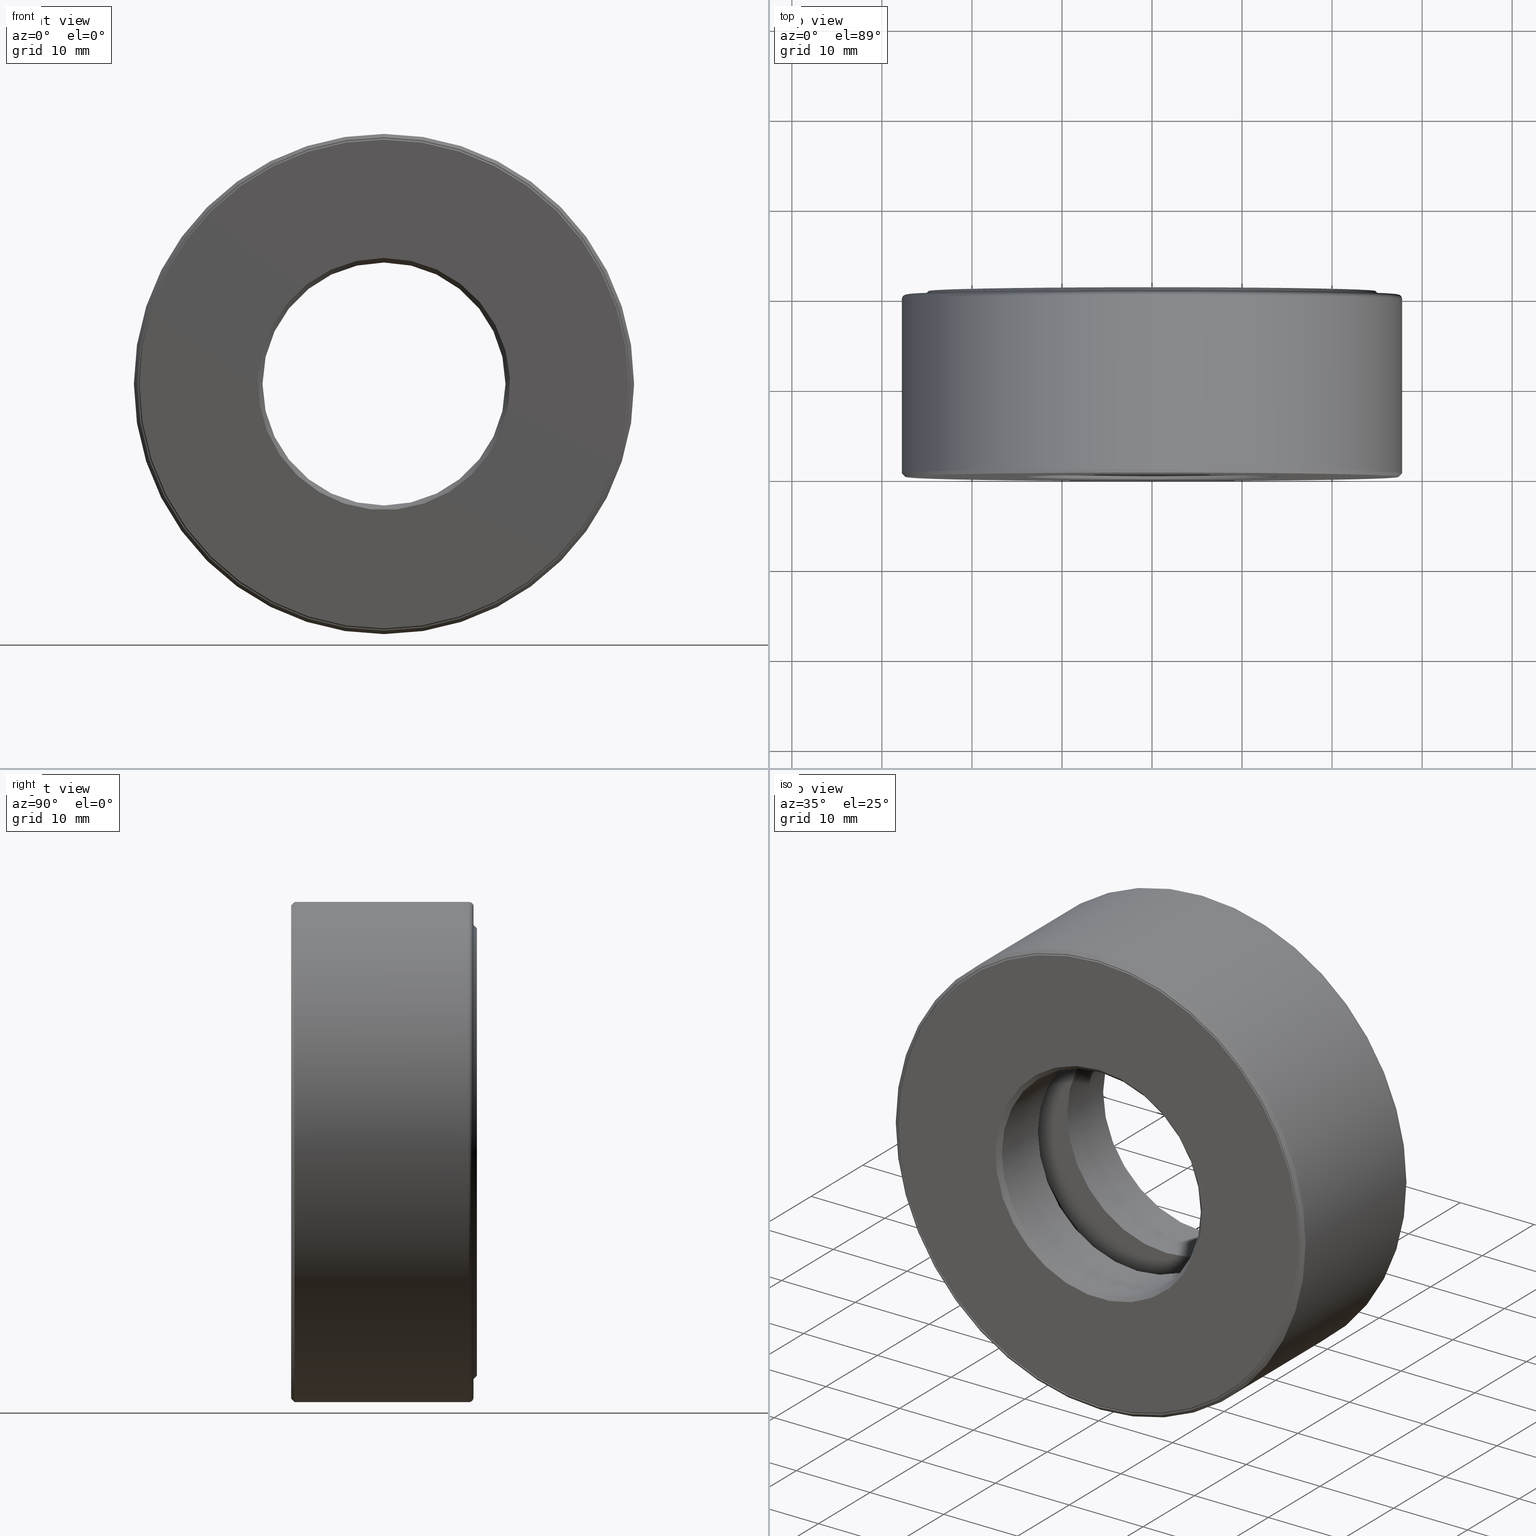
[diagram: canonical four-view strip — front | top / right | iso, engineering-drawing reading convention]
A machine part, canonical four-view strip (front | top / right | iso — engineering-drawing reading convention). The complete STEP part file that produces these views, byte-faithful:
ISO-10303-21;
HEADER;
FILE_DESCRIPTION (( 'STEP AP203' ),
    '1' );
FILE_NAME ('T-100-10.step',
    '2016-06-29T18:27:16',
    ( '' ),
    ( '' ),
    'SwSTEP 2.0',
    'SolidWorks 2016',
    '' );
FILE_SCHEMA (( 'CONFIG_CONTROL_DESIGN' ));
ENDSEC;

DATA;
#1 = APPLICATION_PROTOCOL_DEFINITION ( 'international standard', 'config_control_design', 1994, #260 ) ;
#2 = AXIS2_PLACEMENT_3D ( 'NONE', #442, #222, #544 ) ;
#3 = CARTESIAN_POINT ( 'NONE',  ( 0.0000000000000000000, 0.5187499999999999300, 0.7272500000000000600 ) ) ;
#4 = ORIENTED_EDGE ( 'NONE', *, *, #63, .F. ) ;
#5 = EDGE_LOOP ( 'NONE', ( #522 ) ) ;
#6 = CIRCLE ( 'NONE', #44, 1.073750000000000000 ) ;
#7 = ADVANCED_FACE ( 'NONE', ( #150, #557 ), #606, .F. ) ;
#8 = VERTEX_POINT ( 'NONE', #521 ) ;
#9 = CC_DESIGN_PERSON_AND_ORGANIZATION_ASSIGNMENT ( #19, #45, ( #22 ) ) ;
#10 = APPLICATION_PROTOCOL_DEFINITION ( 'international standard', 'config_control_design', 1994, #391 ) ;
#11 = ORIENTED_EDGE ( 'NONE', *, *, #580, .F. ) ;
#12 = CARTESIAN_POINT ( 'NONE',  ( 0.0000000000000000000, -6.616194359655631800E-017, 0.0000000000000000000 ) ) ;
#13 = VERTEX_POINT ( 'NONE', #256 ) ;
#14 = EDGE_LOOP ( 'NONE', ( #24 ) ) ;
#15 = EDGE_CURVE ( 'NONE', #592, #592, #392, .T. ) ;
#16 = FACE_OUTER_BOUND ( 'NONE', #165, .T. ) ;
#17 = EDGE_LOOP ( 'NONE', ( #138 ) ) ;
#18 = FACE_BOUND ( 'NONE', #67, .T. ) ;
#19 = PERSON_AND_ORGANIZATION ( #404, #148 ) ;
#20 = EDGE_CURVE ( 'NONE', #501, #501, #125, .T. ) ;
#21 = DIRECTION ( 'NONE',  ( 0.0000000000000000000, 0.0000000000000000000, 1.000000000000000000 ) ) ;
#22 = PRODUCT ( 'T-100-10', 'T-100-10', '', ( #353 ) ) ;
#23 = APPROVAL_ROLE ( '' ) ;
#24 = ORIENTED_EDGE ( 'NONE', *, *, #555, .T. ) ;
#25 = CARTESIAN_POINT ( 'NONE',  ( 0.0000000000000000000, 0.4062500000000000600, 0.0000000000000000000 ) ) ;
#26 = DIRECTION ( 'NONE',  ( 0.0000000000000000000, 0.0000000000000000000, 1.000000000000000000 ) ) ;
#27 = DATE_TIME_ROLE ( 'classification_date' ) ;
#28 = DIRECTION ( 'NONE',  ( -0.0000000000000000000, 1.000000000000000000, -0.0000000000000000000 ) ) ;
#29 = FACE_OUTER_BOUND ( 'NONE', #168, .T. ) ;
#30 = EDGE_CURVE ( 'NONE', #115, #115, #375, .T. ) ;
#31 = FACE_BOUND ( 'NONE', #538, .T. ) ;
#32 = AXIS2_PLACEMENT_3D ( 'NONE', #117, #532, #274 ) ;
#33 = FACE_BOUND ( 'NONE', #75, .T. ) ;
#34 = DIRECTION ( 'NONE',  ( 0.0000000000000000000, 0.0000000000000000000, 1.000000000000000000 ) ) ;
#35 = ORIENTED_EDGE ( 'NONE', *, *, #15, .F. ) ;
#36 = DESIGN_CONTEXT ( 'detailed design', #391, 'design' ) ;
#37 = ORIENTED_EDGE ( 'NONE', *, *, #272, .F. ) ;
#38 = ADVANCED_FACE ( 'NONE', ( #405, #16 ), #219, .T. ) ;
#39 = DIRECTION ( 'NONE',  ( -0.0000000000000000000, 1.000000000000000000, 0.0000000000000000000 ) ) ;
#40 = DIRECTION ( 'NONE',  ( 0.0000000000000000000, 0.0000000000000000000, 1.000000000000000000 ) ) ;
#41 = VERTEX_POINT ( 'NONE', #258 ) ;
#42 = EDGE_LOOP ( 'NONE', ( #104 ) ) ;
#43 = ORIENTED_EDGE ( 'NONE', *, *, #248, .T. ) ;
#44 = AXIS2_PLACEMENT_3D ( 'NONE', #155, #486, #216 ) ;
#45 = PERSON_AND_ORGANIZATION_ROLE ( 'design_owner' ) ;
#46 = CALENDAR_DATE ( 2016, 29, 6 ) ;
#47 = SPHERICAL_SURFACE ( 'NONE', #321, 0.1874999999999999700 ) ;
#48 = APPROVAL_ROLE ( '' ) ;
#49 = FACE_OUTER_BOUND ( 'NONE', #311, .T. ) ;
#50 = CC_DESIGN_PERSON_AND_ORGANIZATION_ASSIGNMENT ( #436, #350, ( #59 ) ) ;
#51 = CIRCLE ( 'NONE', #475, 1.013750000000000200 ) ;
#52 = CARTESIAN_POINT ( 'NONE',  ( 0.0000000000000000000, 0.7774999999999999700, 0.0000000000000000000 ) ) ;
#53 = CARTESIAN_POINT ( 'NONE',  ( 0.0000000000000000000, 0.01999999999999992400, 0.5312500000000000000 ) ) ;
#54 = ORIENTED_EDGE ( 'NONE', *, *, #94, .T. ) ;
#55 = PERSON_AND_ORGANIZATION ( #404, #148 ) ;
#56 = AXIS2_PLACEMENT_3D ( 'NONE', #134, #137, #183 ) ;
#57 = DIRECTION ( 'NONE',  ( -0.0000000000000000000, 1.000000000000000000, -0.0000000000000000000 ) ) ;
#58 = DIRECTION ( 'NONE',  ( 0.0000000000000000000, 0.0000000000000000000, 1.000000000000000000 ) ) ;
#59 = PRODUCT_DEFINITION ( 'UNKNOWN', '', #95, #36 ) ;
#60 = EDGE_LOOP ( 'NONE', ( #254 ) ) ;
#61 = EDGE_LOOP ( 'NONE', ( #111 ) ) ;
#62 = FACE_OUTER_BOUND ( 'NONE', #14, .T. ) ;
#63 = EDGE_CURVE ( 'NONE', #261, #261, #105, .T. ) ;
#64 = CIRCLE ( 'NONE', #567, 0.5512500000000000200 ) ;
#65 = APPROVAL_DATE_TIME ( #72, #531 ) ;
#66 = AXIS2_PLACEMENT_3D ( 'NONE', #124, #500, #233 ) ;
#67 = EDGE_LOOP ( 'NONE', ( #365 ) ) ;
#68 = PERSON_AND_ORGANIZATION ( #404, #148 ) ;
#69 = CARTESIAN_POINT ( 'NONE',  ( -8.159528204279590800E-033, -1.440622965408888800E-017, 0.0000000000000000000 ) ) ;
#70 = EDGE_CURVE ( 'NONE', #13, #13, #434, .T. ) ;
#71 = DIRECTION ( 'NONE',  ( 0.0000000000000000000, 0.0000000000000000000, 1.000000000000000000 ) ) ;
#72 = DATE_AND_TIME ( #357, #583 ) ;
#73 = EDGE_LOOP ( 'NONE', ( #334 ) ) ;
#74 = DIRECTION ( 'NONE',  ( 0.0000000000000000000, 0.0000000000000000000, 1.000000000000000000 ) ) ;
#75 = EDGE_LOOP ( 'NONE', ( #588 ) ) ;
#76 = EDGE_LOOP ( 'NONE', ( #281 ) ) ;
#77 = DIRECTION ( 'NONE',  ( -0.0000000000000000000, 1.000000000000000000, -0.0000000000000000000 ) ) ;
#78 = ORIENTED_EDGE ( 'NONE', *, *, #580, .T. ) ;
#79 = DIRECTION ( 'NONE',  ( 0.0000000000000000000, -1.000000000000000000, 0.0000000000000000000 ) ) ;
#80 = CIRCLE ( 'NONE', #491, 1.073750000000000000 ) ;
#81 = EDGE_CURVE ( 'NONE', #192, #192, #237, .T. ) ;
#82 = CIRCLE ( 'NONE', #188, 1.073749999999999800 ) ;
#83 = FACE_OUTER_BOUND ( 'NONE', #560, .T. ) ;
#84 = CARTESIAN_POINT ( 'NONE',  ( 0.0000000000000000000, 0.7774999999999999700, 0.0000000000000000000 ) ) ;
#85 = CLOSED_SHELL ( 'NONE', ( #476 ) ) ;
#86 = APPROVAL ( #141, 'UNSPECIFIED' ) ;
#87 = CIRCLE ( 'NONE', #502, 1.073750000000000000 ) ;
#88 = AXIS2_PLACEMENT_3D ( 'NONE', #144, #410, #166 ) ;
#89 = DIRECTION ( 'NONE',  ( -0.0000000000000000000, 1.000000000000000000, -0.0000000000000000000 ) ) ;
#90 = VERTEX_POINT ( 'NONE', #298 ) ;
#91 = CARTESIAN_POINT ( 'NONE',  ( 0.0000000000000000000, 0.004999999999999769400, 0.0000000000000000000 ) ) ;
#92 = EDGE_LOOP ( 'NONE', ( #277 ) ) ;
#93 = MANIFOLD_SOLID_BREP ( 'Revolve3', #116 ) ;
#94 = EDGE_CURVE ( 'NONE', #496, #496, #495, .T. ) ;
#95 = PRODUCT_DEFINITION_FORMATION_WITH_SPECIFIED_SOURCE ( 'ANY', '', #22, .NOT_KNOWN. ) ;
#96 = LOCAL_TIME ( 14, 27, 16.00000000000000000, #587 ) ;
#97 = CARTESIAN_POINT ( 'NONE',  ( 0.0000000000000000000, 0.7924999999999997600, 0.0000000000000000000 ) ) ;
#98 =( NAMED_UNIT ( * ) SI_UNIT ( $, .STERADIAN. ) SOLID_ANGLE_UNIT ( ) );
#99 = ADVANCED_FACE ( 'NONE', ( #527, #394 ), #181, .T. ) ;
#100 = PERSON_AND_ORGANIZATION_ROLE ( 'design_supplier' ) ;
#101 = EDGE_CURVE ( 'NONE', #157, #157, #146, .T. ) ;
#102 = AXIS2_PLACEMENT_3D ( 'NONE', #333, #428, #514 ) ;
#103 = CARTESIAN_POINT ( 'NONE',  ( 0.0000000000000000000, 0.7774999999999999700, 1.073750000000000000 ) ) ;
#104 = ORIENTED_EDGE ( 'NONE', *, *, #101, .T. ) ;
#105 = CIRCLE ( 'NONE', #534, 1.093750000000000000 ) ;
#106 = CARTESIAN_POINT ( 'NONE',  ( 0.0000000000000000000, 0.2937500000000001200, 0.7272500000000000600 ) ) ;
#107 = CARTESIAN_POINT ( 'NONE',  ( 0.0000000000000000000, -6.398780039534634000E-017, 0.0000000000000000000 ) ) ;
#108 =( GEOMETRIC_REPRESENTATION_CONTEXT ( 3 ) GLOBAL_UNCERTAINTY_ASSIGNED_CONTEXT ( ( #424 ) ) GLOBAL_UNIT_ASSIGNED_CONTEXT ( ( #346, #523, #98 ) ) REPRESENTATION_CONTEXT ( 'NONE', 'WORKASPACE' ) );
#109 = CARTESIAN_POINT ( 'NONE',  ( 0.0000000000000000000, 0.7974999999999999900, 1.013750000000000200 ) ) ;
#110 = DIRECTION ( 'NONE',  ( -0.0000000000000000000, 1.000000000000000000, 0.0000000000000000000 ) ) ;
#111 = ORIENTED_EDGE ( 'NONE', *, *, #581, .T. ) ;
#112 = FACE_OUTER_BOUND ( 'NONE', #429, .T. ) ;
#113 = PLANE ( 'NONE',  #469 ) ;
#114 = ORIENTED_EDGE ( 'NONE', *, *, #384, .T. ) ;
#115 = VERTEX_POINT ( 'NONE', #204 ) ;
#116 = CLOSED_SHELL ( 'NONE', ( #249 ) ) ;
#117 = CARTESIAN_POINT ( 'NONE',  ( -0.8772500000000000900, 0.4062500000000000600, 0.0000000000000000000 ) ) ;
#118 = PRODUCT_DEFINITION_SHAPE ( 'NONE', 'NONE',  #59 ) ;
#119 = AXIS2_PLACEMENT_3D ( 'NONE', #232, #77, #551 ) ;
#120 = DIRECTION ( 'NONE',  ( 0.0000000000000000000, 0.0000000000000000000, 1.000000000000000000 ) ) ;
#121 = DIRECTION ( 'NONE',  ( 0.0000000000000000000, 0.0000000000000000000, 1.000000000000000000 ) ) ;
#122 = VERTEX_POINT ( 'NONE', #470 ) ;
#123 = AXIS2_PLACEMENT_3D ( 'NONE', #597, #518, #292 ) ;
#124 = CARTESIAN_POINT ( 'NONE',  ( 0.0000000000000000000, -6.296055922898108400E-017, 0.0000000000000000000 ) ) ;
#125 = CIRCLE ( 'NONE', #119, 0.5312500000000000000 ) ;
#126 = ORIENTED_EDGE ( 'NONE', *, *, #304, .T. ) ;
#127 = FACE_BOUND ( 'NONE', #342, .T. ) ;
#128 = AXIS2_PLACEMENT_3D ( 'NONE', #594, #456, #374 ) ;
#129 = COORDINATED_UNIVERSAL_TIME_OFFSET ( 5, 0, .BEHIND. ) ;
#130 = DIRECTION ( 'NONE',  ( -0.0000000000000000000, 1.000000000000000000, 0.0000000000000000000 ) ) ;
#131 = LOCAL_TIME ( 14, 27, 16.00000000000000000, #579 ) ;
#132 = CARTESIAN_POINT ( 'NONE',  ( 0.0000000000000000000, 0.7974999999999999900, 0.0000000000000000000 ) ) ;
#133 = CYLINDRICAL_SURFACE ( 'NONE', #396, 0.5312500000000000000 ) ;
#134 = CARTESIAN_POINT ( 'NONE',  ( 0.0000000000000000000, 0.0000000000000000000, 0.0000000000000000000 ) ) ;
#135 = PLANE ( 'NONE',  #378 ) ;
#136 = ADVANCED_FACE ( 'NONE', ( #347, #18 ), #422, .F. ) ;
#137 = DIRECTION ( 'NONE',  ( -0.0000000000000000000, 1.000000000000000000, -0.0000000000000000000 ) ) ;
#138 = ORIENTED_EDGE ( 'NONE', *, *, #30, .T. ) ;
#139 = EDGE_LOOP ( 'NONE', ( #171 ) ) ;
#140 = AXIS2_PLACEMENT_3D ( 'NONE', #173, #79, #554 ) ;
#141 = APPROVAL_STATUS ( 'not_yet_approved' ) ;
#142 = ADVANCED_FACE ( 'NONE', ( #418, #433 ), #570, .T. ) ;
#143 = EDGE_LOOP ( 'NONE', ( #537 ) ) ;
#144 = CARTESIAN_POINT ( 'NONE',  ( -9.188706013500418100E-015, 0.4062500000000000600, -0.8772500000000000900 ) ) ;
#145 = FACE_OUTER_BOUND ( 'NONE', #60, .T. ) ;
#146 = CIRCLE ( 'NONE', #348, 1.013750000000000200 ) ;
#147 = CARTESIAN_POINT ( 'NONE',  ( 0.0000000000000000000, 0.0000000000000000000, 0.0000000000000000000 ) ) ;
#148 = ORGANIZATION ( 'UNSPECIFIED', 'UNSPECIFIED', '' ) ;
#149 = CARTESIAN_POINT ( 'NONE',  ( 0.0000000000000000000, 0.01500000000000004500, 1.093750000000000000 ) ) ;
#150 = FACE_OUTER_BOUND ( 'NONE', #92, .T. ) ;
#151 = ADVANCED_FACE ( 'NONE', ( #464, #286 ), #300, .F. ) ;
#152 = AXIS2_PLACEMENT_3D ( 'NONE', #412, #416, #179 ) ;
#153 = PERSON_AND_ORGANIZATION_ROLE ( 'classification_officer' ) ;
#154 = EDGE_LOOP ( 'NONE', ( #492 ) ) ;
#155 = CARTESIAN_POINT ( 'NONE',  ( 0.0000000000000000000, 0.7974999999999999900, 0.0000000000000000000 ) ) ;
#156 = CC_DESIGN_DATE_AND_TIME_ASSIGNMENT ( #210, #27, ( #352 ) ) ;
#157 = VERTEX_POINT ( 'NONE', #109 ) ;
#158 = ORIENTED_EDGE ( 'NONE', *, *, #390, .T. ) ;
#159 = CC_DESIGN_APPROVAL ( #531, ( #59 ) ) ;
#160 = CIRCLE ( 'NONE', #284, 1.027250000000000000 ) ;
#161 = CIRCLE ( 'NONE', #178, 0.9787499999999997900 ) ;
#162 = CIRCLE ( 'NONE', #371, 0.7272500000000000600 ) ;
#163 = AXIS2_PLACEMENT_3D ( 'NONE', #273, #360, #458 ) ;
#164 = DIRECTION ( 'NONE',  ( 0.0000000000000000000, -0.0000000000000000000, -1.000000000000000000 ) ) ;
#165 = EDGE_LOOP ( 'NONE', ( #565 ) ) ;
#166 = DIRECTION ( 'NONE',  ( 1.047444401652940000E-014, 0.0000000000000000000, 1.000000000000000000 ) ) ;
#167 = AXIS2_PLACEMENT_3D ( 'NONE', #529, #306, #397 ) ;
#168 = EDGE_LOOP ( 'NONE', ( #403 ) ) ;
#169 = FACE_OUTER_BOUND ( 'NONE', #244, .T. ) ;
#170 = VERTEX_POINT ( 'NONE', #440 ) ;
#171 = ORIENTED_EDGE ( 'NONE', *, *, #555, .F. ) ;
#172 = ORIENTED_EDGE ( 'NONE', *, *, #283, .F. ) ;
#173 = CARTESIAN_POINT ( 'NONE',  ( 0.0000000000000000000, 0.7974999999999999900, 0.0000000000000000000 ) ) ;
#174 = ORIENTED_EDGE ( 'NONE', *, *, #358, .T. ) ;
#175 = DIRECTION ( 'NONE',  ( -0.0000000000000000000, 1.000000000000000000, -0.0000000000000000000 ) ) ;
#176 = PERSON_AND_ORGANIZATION ( #404, #148 ) ;
#177 = CARTESIAN_POINT ( 'NONE',  ( 0.0000000000000000000, 0.2937500000000001200, 0.0000000000000000000 ) ) ;
#178 = AXIS2_PLACEMENT_3D ( 'NONE', #548, #231, #121 ) ;
#179 = DIRECTION ( 'NONE',  ( 0.0000000000000000000, 0.0000000000000000000, 1.000000000000000000 ) ) ;
#180 = FACE_OUTER_BOUND ( 'NONE', #209, .T. ) ;
#181 = CYLINDRICAL_SURFACE ( 'NONE', #445, 1.066750000000000100 ) ;
#182 = FACE_BOUND ( 'NONE', #493, .T. ) ;
#183 = DIRECTION ( 'NONE',  ( 0.0000000000000000000, 0.0000000000000000000, 1.000000000000000000 ) ) ;
#184 = CARTESIAN_POINT ( 'NONE',  ( 0.0000000000000000000, 0.7245000000000001400, 0.0000000000000000000 ) ) ;
#185 = ORIENTED_EDGE ( 'NONE', *, *, #81, .F. ) ;
#186 = DIRECTION ( 'NONE',  ( 0.0000000000000000000, 0.0000000000000000000, 1.000000000000000000 ) ) ;
#187 = DIRECTION ( 'NONE',  ( -0.0000000000000000000, 1.000000000000000000, -0.0000000000000000000 ) ) ;
#188 = AXIS2_PLACEMENT_3D ( 'NONE', #107, #344, #471 ) ;
#189 = CARTESIAN_POINT ( 'NONE',  ( 0.0000000000000000000, 0.7924999999999997600, 0.0000000000000000000 ) ) ;
#190 = CARTESIAN_POINT ( 'NONE',  ( 5.117859363130596100E-017, 0.2937500000000001200, 0.0000000000000000000 ) ) ;
#191 = DIRECTION ( 'NONE',  ( 0.0000000000000000000, 0.0000000000000000000, 1.000000000000000000 ) ) ;
#192 = VERTEX_POINT ( 'NONE', #53 ) ;
#193 = CYLINDRICAL_SURFACE ( 'NONE', #295, 1.013750000000000200 ) ;
#194 = ORIENTED_EDGE ( 'NONE', *, *, #384, .F. ) ;
#195 = DIRECTION ( 'NONE',  ( 0.0000000000000000000, -1.000000000000000000, 0.0000000000000000000 ) ) ;
#196 = CLOSED_SHELL ( 'NONE', ( #211, #481, #345, #467, #151, #571, #398, #99 ) ) ;
#197 = DIRECTION ( 'NONE',  ( -0.0000000000000000000, 1.000000000000000000, -0.0000000000000000000 ) ) ;
#198 = CARTESIAN_POINT ( 'NONE',  ( 0.0000000000000000000, 0.2937500000000000700, 1.027250000000000000 ) ) ;
#199 = CC_DESIGN_PERSON_AND_ORGANIZATION_ASSIGNMENT ( #68, #153, ( #352 ) ) ;
#200 = FACE_BOUND ( 'NONE', #230, .T. ) ;
#201 =( LENGTH_UNIT ( ) NAMED_UNIT ( * ) SI_UNIT ( $, .METRE. ) );
#202 = FACE_OUTER_BOUND ( 'NONE', #143, .T. ) ;
#203 = CIRCLE ( 'NONE', #236, 0.5312500000000000000 ) ;
#204 = CARTESIAN_POINT ( 'NONE',  ( 0.0000000000000000000, 0.2937500000000000700, 1.073749999999999800 ) ) ;
#205 = ADVANCED_FACE ( 'NONE', ( ), #47, .T. ) ;
#206 = ORIENTED_EDGE ( 'NONE', *, *, #304, .F. ) ;
#207 = AXIS2_PLACEMENT_3D ( 'NONE', #338, #39, #40 ) ;
#208 = CARTESIAN_POINT ( 'NONE',  ( 0.0000000000000000000, 0.7974999999999999900, 1.073750000000000000 ) ) ;
#209 = EDGE_LOOP ( 'NONE', ( #54 ) ) ;
#210 = DATE_AND_TIME ( #336, #131 ) ;
#211 = ADVANCED_FACE ( 'NONE', ( #315, #539 ), #135, .T. ) ;
#212 = CARTESIAN_POINT ( 'NONE',  ( 0.0000000000000000000, -6.398780039534634000E-017, 1.073749999999999800 ) ) ;
#213 = CARTESIAN_POINT ( 'NONE',  ( 0.0000000000000000000, 0.8125000000000001100, 0.0000000000000000000 ) ) ;
#214 = ORIENTED_EDGE ( 'NONE', *, *, #377, .T. ) ;
#215 = MANIFOLD_SOLID_BREP ( 'BALLS[3]', #364 ) ;
#216 = DIRECTION ( 'NONE',  ( 0.0000000000000000000, 0.0000000000000000000, 1.000000000000000000 ) ) ;
#217 = EDGE_LOOP ( 'NONE', ( #363 ) ) ;
#218 = ORIENTED_EDGE ( 'NONE', *, *, #70, .T. ) ;
#219 = CYLINDRICAL_SURFACE ( 'NONE', #152, 1.093750000000000000 ) ;
#220 = AXIS2_PLACEMENT_3D ( 'NONE', #189, #197, #511 ) ;
#221 = PERSON_AND_ORGANIZATION ( #404, #148 ) ;
#222 = DIRECTION ( 'NONE',  ( -0.0000000000000000000, 1.000000000000000000, -0.0000000000000000000 ) ) ;
#223 = FACE_BOUND ( 'NONE', #498, .T. ) ;
#224 = EDGE_CURVE ( 'NONE', #90, #90, #80, .T. ) ;
#225 = ORIENTED_EDGE ( 'NONE', *, *, #489, .T. ) ;
#226 = CARTESIAN_POINT ( 'NONE',  ( 0.0000000000000000000, 0.5187500000000000400, 0.0000000000000000000 ) ) ;
#227 = DIRECTION ( 'NONE',  ( -0.0000000000000000000, 1.000000000000000000, -0.0000000000000000000 ) ) ;
#228 = AXIS2_PLACEMENT_3D ( 'NONE', #463, #572, #477 ) ;
#229 = CALENDAR_DATE ( 2016, 29, 6 ) ;
#230 = EDGE_LOOP ( 'NONE', ( #43 ) ) ;
#231 = DIRECTION ( 'NONE',  ( -0.0000000000000000000, 1.000000000000000000, -0.0000000000000000000 ) ) ;
#232 = CARTESIAN_POINT ( 'NONE',  ( 0.0000000000000000000, 0.2937500000000001200, 0.0000000000000000000 ) ) ;
#233 = DIRECTION ( 'NONE',  ( 0.0000000000000000000, 0.0000000000000000000, 1.000000000000000000 ) ) ;
#234 = DIRECTION ( 'NONE',  ( 0.0000000000000000000, -1.000000000000000000, 0.0000000000000000000 ) ) ;
#235 = DIRECTION ( 'NONE',  ( 0.0000000000000000000, -0.0000000000000000000, -1.000000000000000000 ) ) ;
#236 = AXIS2_PLACEMENT_3D ( 'NONE', #97, #187, #34 ) ;
#237 = CIRCLE ( 'NONE', #102, 0.5312500000000000000 ) ;
#238 = CARTESIAN_POINT ( 'NONE',  ( 0.0000000000000000000, 0.5187499999999999300, 0.0000000000000000000 ) ) ;
#239 = VERTEX_POINT ( 'NONE', #3 ) ;
#240 = EDGE_CURVE ( 'NONE', #268, #268, #82, .T. ) ;
#241 = CC_DESIGN_APPROVAL ( #86, ( #95 ) ) ;
#242 = DIRECTION ( 'NONE',  ( 0.0000000000000000000, 0.0000000000000000000, 1.000000000000000000 ) ) ;
#243 = DIRECTION ( 'NONE',  ( 0.0000000000000000000, -1.000000000000000000, 0.0000000000000000000 ) ) ;
#244 = EDGE_LOOP ( 'NONE', ( #194 ) ) ;
#245 = ADVANCED_FACE ( 'NONE', ( #223, #271 ), #479, .F. ) ;
#246 = DIRECTION ( 'NONE',  ( 0.0000000000000000000, 0.0000000000000000000, 1.000000000000000000 ) ) ;
#247 = APPROVAL_PERSON_ORGANIZATION ( #373, #462, #23 ) ;
#248 = EDGE_CURVE ( 'NONE', #294, #294, #257, .T. ) ;
#249 = ADVANCED_FACE ( 'NONE', ( ), #380, .T. ) ;
#250 = CARTESIAN_POINT ( 'NONE',  ( 0.0000000000000000000, 3.414809992080329000E-017, 0.5512500000000000200 ) ) ;
#251 = LENGTH_MEASURE_WITH_UNIT ( LENGTH_MEASURE( 0.02539999999999999900 ), #201 );
#252 = AXIS2_PLACEMENT_3D ( 'NONE', #415, #234, #414 ) ;
#253 = APPROVAL_STATUS ( 'not_yet_approved' ) ;
#254 = ORIENTED_EDGE ( 'NONE', *, *, #358, .F. ) ;
#255 = DIRECTION ( 'NONE',  ( 0.0000000000000000000, -1.000000000000000000, 0.0000000000000000000 ) ) ;
#256 = CARTESIAN_POINT ( 'NONE',  ( 0.0000000000000000000, -6.616194359655631800E-017, 1.078750000000000100 ) ) ;
#257 = CIRCLE ( 'NONE', #368, 0.5312500000000000000 ) ;
#258 = CARTESIAN_POINT ( 'NONE',  ( 0.0000000000000000000, 0.8125000000000001100, 0.9787499999999997900 ) ) ;
#259 = ADVANCED_FACE ( 'NONE', ( ), #313, .T. ) ;
#260 = APPLICATION_CONTEXT ( 'configuration controlled 3d designs of mechanical parts and assemblies' ) ;
#261 = VERTEX_POINT ( 'NONE', #149 ) ;
#262 = AXIS2_PLACEMENT_3D ( 'NONE', #372, #547, #26 ) ;
#263 = CARTESIAN_POINT ( 'NONE',  ( 0.0000000000000000000, 0.5187500000000000400, 0.0000000000000000000 ) ) ;
#264 = EDGE_LOOP ( 'NONE', ( #323 ) ) ;
#265 = CALENDAR_DATE ( 2016, 29, 6 ) ;
#266 = DIRECTION ( 'NONE',  ( 0.0000000000000000000, 0.0000000000000000000, 1.000000000000000000 ) ) ;
#267 = CC_DESIGN_PERSON_AND_ORGANIZATION_ASSIGNMENT ( #55, #100, ( #95 ) ) ;
#268 = VERTEX_POINT ( 'NONE', #212 ) ;
#269 = CLOSED_SHELL ( 'NONE', ( #525, #245, #7, #136, #605, #387, #142, #38, #290, #599, #349, #438, #305, #355, #563, #574 ) ) ;
#270 = MANIFOLD_SOLID_BREP ( 'BALLS[2]', #443 ) ;
#271 = FACE_OUTER_BOUND ( 'NONE', #17, .T. ) ;
#272 = EDGE_CURVE ( 'NONE', #427, #427, #64, .T. ) ;
#273 = CARTESIAN_POINT ( 'NONE',  ( 0.0000000000000000000, 0.01999999999999992400, 0.0000000000000000000 ) ) ;
#274 = DIRECTION ( 'NONE',  ( 1.000000000000000000, 0.0000000000000000000, 0.0000000000000000000 ) ) ;
#275 = ORIENTED_EDGE ( 'NONE', *, *, #390, .F. ) ;
#276 = APPROVAL_DATE_TIME ( #536, #462 ) ;
#277 = ORIENTED_EDGE ( 'NONE', *, *, #30, .F. ) ;
#278 = DIRECTION ( 'NONE',  ( -0.0000000000000000000, 1.000000000000000000, -0.0000000000000000000 ) ) ;
#279 = EDGE_LOOP ( 'NONE', ( #35 ) ) ;
#280 = CARTESIAN_POINT ( 'NONE',  ( 0.0000000000000000000, 0.0000000000000000000, 0.0000000000000000000 ) ) ;
#281 = ORIENTED_EDGE ( 'NONE', *, *, #459, .T. ) ;
#282 = DIRECTION ( 'NONE',  ( 0.0000000000000000000, 0.0000000000000000000, 1.000000000000000000 ) ) ;
#283 = EDGE_CURVE ( 'NONE', #122, #122, #569, .T. ) ;
#284 = AXIS2_PLACEMENT_3D ( 'NONE', #331, #461, #552 ) ;
#285 = ORIENTED_EDGE ( 'NONE', *, *, #15, .T. ) ;
#286 = FACE_BOUND ( 'NONE', #139, .T. ) ;
#287 = AXIS2_PLACEMENT_3D ( 'NONE', #515, #130, #242 ) ;
#288 = DIRECTION ( 'NONE',  ( 0.0000000000000000000, 0.0000000000000000000, 1.000000000000000000 ) ) ;
#289 = DIRECTION ( 'NONE',  ( 0.0000000000000000000, -0.0000000000000000000, -1.000000000000000000 ) ) ;
#290 = ADVANCED_FACE ( 'NONE', ( #541, #448 ), #453, .T. ) ;
#291 = DIRECTION ( 'NONE',  ( -0.0000000000000000000, 1.000000000000000000, -0.0000000000000000000 ) ) ;
#292 = DIRECTION ( 'NONE',  ( 0.0000000000000000000, 0.0000000000000000000, 1.000000000000000000 ) ) ;
#293 = CARTESIAN_POINT ( 'NONE',  ( 0.0000000000000000000, -6.616194359655631800E-017, 0.0000000000000000000 ) ) ;
#294 = VERTEX_POINT ( 'NONE', #308 ) ;
#295 = AXIS2_PLACEMENT_3D ( 'NONE', #147, #568, #478 ) ;
#296 = EDGE_LOOP ( 'NONE', ( #126 ) ) ;
#297 = ORIENTED_EDGE ( 'NONE', *, *, #283, .T. ) ;
#298 = CARTESIAN_POINT ( 'NONE',  ( 0.0000000000000000000, 0.004999999999999769400, 1.073750000000000000 ) ) ;
#299 = CARTESIAN_POINT ( 'NONE',  ( 0.0000000000000000000, 0.5187500000000000400, 1.066750000000000100 ) ) ;
#300 = CONICAL_SURFACE ( 'NONE', #220, 0.5312500000000000000, 0.7853981633974415100 ) ;
#301 = FACE_BOUND ( 'NONE', #488, .T. ) ;
#302 = CARTESIAN_POINT ( 'NONE',  ( 0.0000000000000000000, 0.7924999999999997600, 0.5312500000000000000 ) ) ;
#303 = CIRCLE ( 'NONE', #123, 1.093750000000000000 ) ;
#304 = EDGE_CURVE ( 'NONE', #591, #591, #6, .T. ) ;
#305 = ADVANCED_FACE ( 'NONE', ( #354, #127 ), #113, .F. ) ;
#306 = DIRECTION ( 'NONE',  ( 0.0000000000000000000, 0.0000000000000000000, 1.000000000000000000 ) ) ;
#307 = EDGE_LOOP ( 'NONE', ( #218 ) ) ;
#308 = CARTESIAN_POINT ( 'NONE',  ( 0.0000000000000000000, 0.5187500000000000400, 0.5312500000000000000 ) ) ;
#309 = LOCAL_TIME ( 14, 27, 16.00000000000000000, #457 ) ;
#310 = PLANE ( 'NONE',  #441 ) ;
#311 = EDGE_LOOP ( 'NONE', ( #11 ) ) ;
#312 = APPROVAL_DATE_TIME ( #566, #86 ) ;
#313 = SPHERICAL_SURFACE ( 'NONE', #88, 0.1874999999999999700 ) ;
#314 = AXIS2_PLACEMENT_3D ( 'NONE', #389, #562, #379 ) ;
#315 = FACE_BOUND ( 'NONE', #370, .T. ) ;
#316 = FACE_OUTER_BOUND ( 'NONE', #437, .T. ) ;
#317 = EDGE_LOOP ( 'NONE', ( #530 ) ) ;
#318 = DIRECTION ( 'NONE',  ( -0.0000000000000000000, 1.000000000000000000, -0.0000000000000000000 ) ) ;
#319 = EDGE_LOOP ( 'NONE', ( #466 ) ) ;
#320 = CIRCLE ( 'NONE', #482, 1.066750000000000100 ) ;
#321 = AXIS2_PLACEMENT_3D ( 'NONE', #383, #519, #425 ) ;
#322 = DIRECTION ( 'NONE',  ( 0.0000000000000000000, 0.0000000000000000000, 1.000000000000000000 ) ) ;
#323 = ORIENTED_EDGE ( 'NONE', *, *, #81, .T. ) ;
#324 = EDGE_LOOP ( 'NONE', ( #225 ) ) ;
#325 = AXIS2_PLACEMENT_3D ( 'NONE', #343, #601, #559 ) ;
#326 = DIRECTION ( 'NONE',  ( 0.0000000000000000000, 0.0000000000000000000, 1.000000000000000000 ) ) ;
#327 = FACE_OUTER_BOUND ( 'NONE', #595, .T. ) ;
#328 = ADVANCED_BREP_SHAPE_REPRESENTATION ( 'T-100-10', ( #494, #490, #93, #431, #270, #215, #167 ), #108 ) ;
#329 = CC_DESIGN_APPROVAL ( #462, ( #352 ) ) ;
#330 = CIRCLE ( 'NONE', #590, 0.7272500000000000600 ) ;
#331 = CARTESIAN_POINT ( 'NONE',  ( 0.0000000000000000000, 0.2937500000000000700, 0.0000000000000000000 ) ) ;
#332 = FACE_OUTER_BOUND ( 'NONE', #319, .T. ) ;
#333 = CARTESIAN_POINT ( 'NONE',  ( 0.0000000000000000000, 0.01999999999999992400, 0.0000000000000000000 ) ) ;
#334 = ORIENTED_EDGE ( 'NONE', *, *, #101, .F. ) ;
#335 = AXIS2_PLACEMENT_3D ( 'NONE', #293, #468, #288 ) ;
#336 = CALENDAR_DATE ( 2016, 29, 6 ) ;
#337 = CARTESIAN_POINT ( 'NONE',  ( 0.0000000000000000000, 0.01500000000000004500, 0.0000000000000000000 ) ) ;
#338 = CARTESIAN_POINT ( 'NONE',  ( 0.0000000000000000000, 0.7774999999999999700, 0.0000000000000000000 ) ) ;
#339 = VERTEX_POINT ( 'NONE', #604 ) ;
#340 = ORIENTED_EDGE ( 'NONE', *, *, #70, .F. ) ;
#341 = PLANE ( 'NONE',  #228 ) ;
#342 = EDGE_LOOP ( 'NONE', ( #535 ) ) ;
#343 = CARTESIAN_POINT ( 'NONE',  ( 0.0000000000000000000, 0.2937500000000000700, 0.0000000000000000000 ) ) ;
#344 = DIRECTION ( 'NONE',  ( -0.0000000000000000000, 1.000000000000000000, -0.0000000000000000000 ) ) ;
#345 = ADVANCED_FACE ( 'NONE', ( #200, #49 ), #310, .T. ) ;
#346 =( CONVERSION_BASED_UNIT ( 'INCH', #251 ) LENGTH_UNIT ( ) NAMED_UNIT ( #472 ) );
#347 = FACE_OUTER_BOUND ( 'NONE', #578, .T. ) ;
#348 = AXIS2_PLACEMENT_3D ( 'NONE', #132, #89, #556 ) ;
#349 = ADVANCED_FACE ( 'NONE', ( #202, #29 ), #596, .F. ) ;
#350 = PERSON_AND_ORGANIZATION_ROLE ( 'creator' ) ;
#351 = CARTESIAN_POINT ( 'NONE',  ( 0.0000000000000000000, 0.2937500000000001200, 0.5312500000000000000 ) ) ;
#352 = SECURITY_CLASSIFICATION ( '', '', #533 ) ;
#353 = MECHANICAL_CONTEXT ( 'NONE', #260, 'mechanical' ) ;
#354 = FACE_OUTER_BOUND ( 'NONE', #279, .T. ) ;
#355 = ADVANCED_FACE ( 'NONE', ( #327, #480 ), #575, .F. ) ;
#356 = DATE_TIME_ROLE ( 'creation_date' ) ;
#357 = CALENDAR_DATE ( 2016, 29, 6 ) ;
#358 = EDGE_CURVE ( 'NONE', #170, #170, #582, .T. ) ;
#359 = ORIENTED_EDGE ( 'NONE', *, *, #20, .F. ) ;
#360 = DIRECTION ( 'NONE',  ( 0.0000000000000000000, -1.000000000000000000, 0.0000000000000000000 ) ) ;
#361 = CARTESIAN_POINT ( 'NONE',  ( -1.807584370807828400E-016, 0.5187500000000000400, 0.0000000000000000000 ) ) ;
#362 = AXIS2_PLACEMENT_3D ( 'NONE', #12, #484, #58 ) ;
#363 = ORIENTED_EDGE ( 'NONE', *, *, #489, .F. ) ;
#364 = CLOSED_SHELL ( 'NONE', ( #259 ) ) ;
#365 = ORIENTED_EDGE ( 'NONE', *, *, #593, .T. ) ;
#366 = SHAPE_DEFINITION_REPRESENTATION ( #118, #328 ) ;
#367 = TOROIDAL_SURFACE ( 'NONE', #452, 0.8772500000000000900, 0.1874999999999999700 ) ;
#368 = AXIS2_PLACEMENT_3D ( 'NONE', #263, #577, #266 ) ;
#369 = VERTEX_POINT ( 'NONE', #103 ) ;
#370 = EDGE_LOOP ( 'NONE', ( #174 ) ) ;
#371 = AXIS2_PLACEMENT_3D ( 'NONE', #238, #291, #561 ) ;
#372 = CARTESIAN_POINT ( 'NONE',  ( 0.0000000000000000000, 0.0000000000000000000, 0.0000000000000000000 ) ) ;
#373 = PERSON_AND_ORGANIZATION ( #404, #148 ) ;
#374 = DIRECTION ( 'NONE',  ( -3.491481338843134500E-015, 0.0000000000000000000, -1.000000000000000000 ) ) ;
#375 = CIRCLE ( 'NONE', #325, 1.073749999999999800 ) ;
#376 = CARTESIAN_POINT ( 'NONE',  ( 0.0000000000000000000, 0.5187499999999999300, 0.0000000000000000000 ) ) ;
#377 = EDGE_CURVE ( 'NONE', #369, #369, #87, .T. ) ;
#378 = AXIS2_PLACEMENT_3D ( 'NONE', #385, #243, #289 ) ;
#379 = DIRECTION ( 'NONE',  ( 0.0000000000000000000, 0.0000000000000000000, 1.000000000000000000 ) ) ;
#380 = SPHERICAL_SURFACE ( 'NONE', #32, 0.1874999999999999700 ) ;
#381 = AXIS2_PLACEMENT_3D ( 'NONE', #190, #195, #235 ) ;
#382 = DIRECTION ( 'NONE',  ( 0.0000000000000000000, 0.0000000000000000000, 1.000000000000000000 ) ) ;
#383 = CARTESIAN_POINT ( 'NONE',  ( 0.8772500000000000900, 0.4062500000000000600, -6.125804009000277700E-015 ) ) ;
#384 = EDGE_CURVE ( 'NONE', #603, #603, #330, .T. ) ;
#385 = CARTESIAN_POINT ( 'NONE',  ( 8.969279409578060600E-016, 0.5187500000000000400, 0.0000000000000000000 ) ) ;
#386 = EDGE_LOOP ( 'NONE', ( #214 ) ) ;
#387 = ADVANCED_FACE ( 'NONE', ( #406, #419 ), #546, .F. ) ;
#388 = PERSON_AND_ORGANIZATION ( #404, #148 ) ;
#389 = CARTESIAN_POINT ( 'NONE',  ( 0.0000000000000000000, 0.7774999999999999700, 0.0000000000000000000 ) ) ;
#390 = EDGE_CURVE ( 'NONE', #41, #41, #161, .T. ) ;
#391 = APPLICATION_CONTEXT ( 'configuration controlled 3d designs of mechanical parts and assemblies' ) ;
#392 = CIRCLE ( 'NONE', #411, 1.068750000000000100 ) ;
#393 = PERSON_AND_ORGANIZATION_ROLE ( 'creator' ) ;
#394 = FACE_OUTER_BOUND ( 'NONE', #520, .T. ) ;
#395 = DIRECTION ( 'NONE',  ( 0.0000000000000000000, 0.0000000000000000000, 1.000000000000000000 ) ) ;
#396 = AXIS2_PLACEMENT_3D ( 'NONE', #280, #227, #589 ) ;
#397 = DIRECTION ( 'NONE',  ( 1.000000000000000000, 0.0000000000000000000, 0.0000000000000000000 ) ) ;
#398 = ADVANCED_FACE ( 'NONE', ( #180, #31 ), #526, .T. ) ;
#399 = ORIENTED_EDGE ( 'NONE', *, *, #248, .F. ) ;
#400 = CARTESIAN_POINT ( 'NONE',  ( 0.0000000000000000000, -6.296055922898108400E-017, 1.068750000000000100 ) ) ;
#401 = DIRECTION ( 'NONE',  ( 0.0000000000000000000, 0.0000000000000000000, 1.000000000000000000 ) ) ;
#402 = VERTEX_POINT ( 'NONE', #302 ) ;
#403 = ORIENTED_EDGE ( 'NONE', *, *, #224, .T. ) ;
#404 = PERSON ( 'UNSPECIFIED', 'UNSPECIFIED', 'UNSPECIFIED', ('UNSPECIFIED'), ('UNSPECIFIED'), ('UNSPECIFIED') ) ;
#405 = FACE_OUTER_BOUND ( 'NONE', #5, .T. ) ;
#406 = FACE_BOUND ( 'NONE', #73, .T. ) ;
#407 = FACE_OUTER_BOUND ( 'NONE', #549, .T. ) ;
#408 = FACE_OUTER_BOUND ( 'NONE', #42, .T. ) ;
#409 = EDGE_LOOP ( 'NONE', ( #297 ) ) ;
#410 = DIRECTION ( 'NONE',  ( 1.000000000000000000, 0.0000000000000000000, -1.047444401652940000E-014 ) ) ;
#411 = AXIS2_PLACEMENT_3D ( 'NONE', #506, #175, #503 ) ;
#412 = CARTESIAN_POINT ( 'NONE',  ( 0.0000000000000000000, 0.0000000000000000000, 0.0000000000000000000 ) ) ;
#413 = ORIENTED_EDGE ( 'NONE', *, *, #377, .F. ) ;
#414 = DIRECTION ( 'NONE',  ( 0.0000000000000000000, 0.0000000000000000000, -1.000000000000000000 ) ) ;
#415 = CARTESIAN_POINT ( 'NONE',  ( 0.0000000000000000000, 0.8125000000000001100, 0.0000000000000000000 ) ) ;
#416 = DIRECTION ( 'NONE',  ( -0.0000000000000000000, 1.000000000000000000, -0.0000000000000000000 ) ) ;
#417 = DIRECTION ( 'NONE',  ( -0.0000000000000000000, 1.000000000000000000, -0.0000000000000000000 ) ) ;
#418 = FACE_OUTER_BOUND ( 'NONE', #509, .T. ) ;
#419 = FACE_OUTER_BOUND ( 'NONE', #296, .T. ) ;
#420 = FACE_OUTER_BOUND ( 'NONE', #543, .T. ) ;
#421 = DIRECTION ( 'NONE',  ( -0.0000000000000000000, 1.000000000000000000, -0.0000000000000000000 ) ) ;
#422 = PLANE ( 'NONE',  #207 ) ;
#423 = DIRECTION ( 'NONE',  ( -0.0000000000000000000, 1.000000000000000000, -0.0000000000000000000 ) ) ;
#424 = UNCERTAINTY_MEASURE_WITH_UNIT (LENGTH_MEASURE( 1.000000000000000100E-005 ), #346, 'distance_accuracy_value', 'NONE');
#425 = DIRECTION ( 'NONE',  ( -1.000000000000000000, 0.0000000000000000000, 6.982962677686269100E-015 ) ) ;
#426 = DIRECTION ( 'NONE',  ( -0.0000000000000000000, 1.000000000000000000, -0.0000000000000000000 ) ) ;
#427 = VERTEX_POINT ( 'NONE', #250 ) ;
#428 = DIRECTION ( 'NONE',  ( -0.0000000000000000000, 1.000000000000000000, -0.0000000000000000000 ) ) ;
#429 = EDGE_LOOP ( 'NONE', ( #78 ) ) ;
#430 = DATE_AND_TIME ( #265, #451 ) ;
#431 = MANIFOLD_SOLID_BREP ( 'BALLS[1]', #85 ) ;
#432 = APPROVAL_ROLE ( '' ) ;
#433 = FACE_OUTER_BOUND ( 'NONE', #61, .T. ) ;
#434 = CIRCLE ( 'NONE', #335, 1.078750000000000100 ) ;
#435 = AXIS2_PLACEMENT_3D ( 'NONE', #524, #255, #455 ) ;
#436 = PERSON_AND_ORGANIZATION ( #404, #148 ) ;
#437 = EDGE_LOOP ( 'NONE', ( #340 ) ) ;
#438 = ADVANCED_FACE ( 'NONE', ( #447, #301 ), #446, .T. ) ;
#439 = COORDINATED_UNIVERSAL_TIME_OFFSET ( 5, 0, .BEHIND. ) ;
#440 = CARTESIAN_POINT ( 'NONE',  ( 0.0000000000000000000, 0.5187499999999999300, 1.027250000000000000 ) ) ;
#441 = AXIS2_PLACEMENT_3D ( 'NONE', #361, #444, #164 ) ;
#442 = CARTESIAN_POINT ( 'NONE',  ( 0.0000000000000000000, 0.0000000000000000000, 0.0000000000000000000 ) ) ;
#443 = CLOSED_SHELL ( 'NONE', ( #205 ) ) ;
#444 = DIRECTION ( 'NONE',  ( 0.0000000000000000000, -1.000000000000000000, 0.0000000000000000000 ) ) ;
#445 = AXIS2_PLACEMENT_3D ( 'NONE', #465, #564, #186 ) ;
#446 = CONICAL_SURFACE ( 'NONE', #66, 1.068750000000000100, 0.7853981633974597100 ) ;
#447 = FACE_OUTER_BOUND ( 'NONE', #317, .T. ) ;
#448 = FACE_BOUND ( 'NONE', #307, .T. ) ;
#449 = CYLINDRICAL_SURFACE ( 'NONE', #56, 0.5312500000000000000 ) ;
#450 = EDGE_LOOP ( 'NONE', ( #185 ) ) ;
#451 = LOCAL_TIME ( 14, 27, 16.00000000000000000, #439 ) ;
#452 = AXIS2_PLACEMENT_3D ( 'NONE', #550, #278, #326 ) ;
#453 = CONICAL_SURFACE ( 'NONE', #362, 1.078750000000000100, 0.7853981633974438400 ) ;
#454 = VERTEX_POINT ( 'NONE', #299 ) ;
#455 = DIRECTION ( 'NONE',  ( 0.0000000000000000000, -0.0000000000000000000, -1.000000000000000000 ) ) ;
#456 = DIRECTION ( 'NONE',  ( -1.000000000000000000, 0.0000000000000000000, 3.491481338843134500E-015 ) ) ;
#457 = COORDINATED_UNIVERSAL_TIME_OFFSET ( 5, 0, .BEHIND. ) ;
#458 = DIRECTION ( 'NONE',  ( 0.0000000000000000000, 0.0000000000000000000, -1.000000000000000000 ) ) ;
#459 = EDGE_CURVE ( 'NONE', #473, #473, #160, .T. ) ;
#460 = AXIS2_PLACEMENT_3D ( 'NONE', #213, #318, #120 ) ;
#461 = DIRECTION ( 'NONE',  ( -0.0000000000000000000, 1.000000000000000000, -0.0000000000000000000 ) ) ;
#462 = APPROVAL ( #585, 'UNSPECIFIED' ) ;
#463 = CARTESIAN_POINT ( 'NONE',  ( -1.751974655613626800E-031, -6.507487199595134700E-017, 0.0000000000000000000 ) ) ;
#464 = FACE_OUTER_BOUND ( 'NONE', #409, .T. ) ;
#465 = CARTESIAN_POINT ( 'NONE',  ( 0.0000000000000000000, 0.0000000000000000000, 0.0000000000000000000 ) ) ;
#466 = ORIENTED_EDGE ( 'NONE', *, *, #593, .F. ) ;
#467 = ADVANCED_FACE ( 'NONE', ( #62, #407 ), #133, .F. ) ;
#468 = DIRECTION ( 'NONE',  ( -0.0000000000000000000, 1.000000000000000000, -0.0000000000000000000 ) ) ;
#469 = AXIS2_PLACEMENT_3D ( 'NONE', #69, #110, #71 ) ;
#470 = CARTESIAN_POINT ( 'NONE',  ( 0.0000000000000000000, 0.8125000000000001100, 0.5512500000000001300 ) ) ;
#471 = DIRECTION ( 'NONE',  ( 0.0000000000000000000, 0.0000000000000000000, 1.000000000000000000 ) ) ;
#472 = DIMENSIONAL_EXPONENTS ( 1.000000000000000000, 0.0000000000000000000, 0.0000000000000000000, 0.0000000000000000000, 0.0000000000000000000, 0.0000000000000000000, 0.0000000000000000000 ) ;
#473 = VERTEX_POINT ( 'NONE', #198 ) ;
#474 = DIRECTION ( 'NONE',  ( -0.0000000000000000000, 1.000000000000000000, -0.0000000000000000000 ) ) ;
#475 = AXIS2_PLACEMENT_3D ( 'NONE', #52, #474, #395 ) ;
#476 = ADVANCED_FACE ( 'NONE', ( ), #602, .T. ) ;
#477 = DIRECTION ( 'NONE',  ( 0.0000000000000000000, 0.0000000000000000000, 1.000000000000000000 ) ) ;
#478 = DIRECTION ( 'NONE',  ( 0.0000000000000000000, 0.0000000000000000000, 1.000000000000000000 ) ) ;
#479 = PLANE ( 'NONE',  #435 ) ;
#480 = FACE_BOUND ( 'NONE', #264, .T. ) ;
#481 = ADVANCED_FACE ( 'NONE', ( #112, #145 ), #367, .F. ) ;
#482 = AXIS2_PLACEMENT_3D ( 'NONE', #226, #28, #322 ) ;
#483 = CARTESIAN_POINT ( 'NONE',  ( 0.0000000000000000000, 0.7245000000000001400, 1.066750000000000100 ) ) ;
#484 = DIRECTION ( 'NONE',  ( -0.0000000000000000000, 1.000000000000000000, -0.0000000000000000000 ) ) ;
#485 = EDGE_LOOP ( 'NONE', ( #4 ) ) ;
#486 = DIRECTION ( 'NONE',  ( -0.0000000000000000000, 1.000000000000000000, -0.0000000000000000000 ) ) ;
#487 = APPROVAL_PERSON_ORGANIZATION ( #388, #86, #48 ) ;
#488 = EDGE_LOOP ( 'NONE', ( #285 ) ) ;
#489 = EDGE_CURVE ( 'NONE', #454, #454, #320, .T. ) ;
#490 = MANIFOLD_SOLID_BREP ( 'Revolve2[2]', #196 ) ;
#491 = AXIS2_PLACEMENT_3D ( 'NONE', #91, #426, #246 ) ;
#492 = ORIENTED_EDGE ( 'NONE', *, *, #20, .T. ) ;
#493 = EDGE_LOOP ( 'NONE', ( #172 ) ) ;
#494 = MANIFOLD_SOLID_BREP ( 'Revolve2[1]', #269 ) ;
#495 = CIRCLE ( 'NONE', #576, 1.066750000000000100 ) ;
#496 = VERTEX_POINT ( 'NONE', #483 ) ;
#497 = CARTESIAN_POINT ( 'NONE',  ( 0.0000000000000000000, 3.414809992080329000E-017, 0.0000000000000000000 ) ) ;
#498 = EDGE_LOOP ( 'NONE', ( #586 ) ) ;
#499 = EDGE_LOOP ( 'NONE', ( #359 ) ) ;
#500 = DIRECTION ( 'NONE',  ( -0.0000000000000000000, 1.000000000000000000, -0.0000000000000000000 ) ) ;
#501 = VERTEX_POINT ( 'NONE', #351 ) ;
#502 = AXIS2_PLACEMENT_3D ( 'NONE', #84, #417, #74 ) ;
#503 = DIRECTION ( 'NONE',  ( 0.0000000000000000000, 0.0000000000000000000, 1.000000000000000000 ) ) ;
#504 = ORIENTED_EDGE ( 'NONE', *, *, #94, .F. ) ;
#505 = DIRECTION ( 'NONE',  ( 0.0000000000000000000, 0.0000000000000000000, 1.000000000000000000 ) ) ;
#506 = CARTESIAN_POINT ( 'NONE',  ( 0.0000000000000000000, -6.296055922898108400E-017, 0.0000000000000000000 ) ) ;
#507 = CC_DESIGN_SECURITY_CLASSIFICATION ( #352, ( #95 ) ) ;
#508 = DIRECTION ( 'NONE',  ( -0.0000000000000000000, 1.000000000000000000, -0.0000000000000000000 ) ) ;
#509 = EDGE_LOOP ( 'NONE', ( #206 ) ) ;
#510 = PLANE ( 'NONE',  #287 ) ;
#511 = DIRECTION ( 'NONE',  ( 0.0000000000000000000, 0.0000000000000000000, 1.000000000000000000 ) ) ;
#512 = APPROVAL_PERSON_ORGANIZATION ( #221, #531, #432 ) ;
#513 = AXIS2_PLACEMENT_3D ( 'NONE', #25, #421, #21 ) ;
#514 = DIRECTION ( 'NONE',  ( 0.0000000000000000000, 0.0000000000000000000, 1.000000000000000000 ) ) ;
#515 = CARTESIAN_POINT ( 'NONE',  ( 0.0000000000000000000, 0.8125000000000001100, 0.0000000000000000000 ) ) ;
#516 = DIRECTION ( 'NONE',  ( -0.0000000000000000000, 1.000000000000000000, -0.0000000000000000000 ) ) ;
#517 = CC_DESIGN_DATE_AND_TIME_ASSIGNMENT ( #430, #356, ( #59 ) ) ;
#518 = DIRECTION ( 'NONE',  ( -0.0000000000000000000, 1.000000000000000000, -0.0000000000000000000 ) ) ;
#519 = DIRECTION ( 'NONE',  ( 6.982962677686269100E-015, -0.0000000000000000000, 1.000000000000000000 ) ) ;
#520 = EDGE_LOOP ( 'NONE', ( #504 ) ) ;
#521 = CARTESIAN_POINT ( 'NONE',  ( 0.0000000000000000000, 0.7774999999999999700, 1.093750000000000000 ) ) ;
#522 = ORIENTED_EDGE ( 'NONE', *, *, #581, .F. ) ;
#523 =( NAMED_UNIT ( * ) PLANE_ANGLE_UNIT ( ) SI_UNIT ( $, .RADIAN. ) );
#524 = CARTESIAN_POINT ( 'NONE',  ( -2.157205236932476600E-016, 0.2937500000000000700, 0.0000000000000000000 ) ) ;
#525 = ADVANCED_FACE ( 'NONE', ( #169, #545 ), #528, .F. ) ;
#526 = CONICAL_SURFACE ( 'NONE', #252, 0.9787499999999997900, 0.7853981633974498300 ) ;
#527 = FACE_OUTER_BOUND ( 'NONE', #324, .T. ) ;
#528 = TOROIDAL_SURFACE ( 'NONE', #513, 0.8772500000000000900, 0.1874999999999999700 ) ;
#529 = CARTESIAN_POINT ( 'NONE',  ( 0.0000000000000000000, 0.0000000000000000000, 0.0000000000000000000 ) ) ;
#530 = ORIENTED_EDGE ( 'NONE', *, *, #224, .F. ) ;
#531 = APPROVAL ( #253, 'UNSPECIFIED' ) ;
#532 = DIRECTION ( 'NONE',  ( 0.0000000000000000000, 0.0000000000000000000, -1.000000000000000000 ) ) ;
#533 = SECURITY_CLASSIFICATION_LEVEL ( 'unclassified' ) ;
#534 = AXIS2_PLACEMENT_3D ( 'NONE', #337, #516, #382 ) ;
#535 = ORIENTED_EDGE ( 'NONE', *, *, #272, .T. ) ;
#536 = DATE_AND_TIME ( #46, #309 ) ;
#537 = ORIENTED_EDGE ( 'NONE', *, *, #240, .F. ) ;
#538 = EDGE_LOOP ( 'NONE', ( #275 ) ) ;
#539 = FACE_OUTER_BOUND ( 'NONE', #217, .T. ) ;
#540 = PRODUCT_RELATED_PRODUCT_CATEGORY ( 'detail', '', ( #22 ) ) ;
#541 = FACE_OUTER_BOUND ( 'NONE', #485, .T. ) ;
#542 = FACE_OUTER_BOUND ( 'NONE', #450, .T. ) ;
#543 = EDGE_LOOP ( 'NONE', ( #158 ) ) ;
#544 = DIRECTION ( 'NONE',  ( 0.0000000000000000000, 0.0000000000000000000, 1.000000000000000000 ) ) ;
#545 = FACE_OUTER_BOUND ( 'NONE', #76, .T. ) ;
#546 = PLANE ( 'NONE',  #140 ) ;
#547 = DIRECTION ( 'NONE',  ( -0.0000000000000000000, 1.000000000000000000, -0.0000000000000000000 ) ) ;
#548 = CARTESIAN_POINT ( 'NONE',  ( 0.0000000000000000000, 0.8125000000000001100, 0.0000000000000000000 ) ) ;
#549 = EDGE_LOOP ( 'NONE', ( #399 ) ) ;
#550 = CARTESIAN_POINT ( 'NONE',  ( 0.0000000000000000000, 0.4062500000000000600, 0.0000000000000000000 ) ) ;
#551 = DIRECTION ( 'NONE',  ( 0.0000000000000000000, 0.0000000000000000000, 1.000000000000000000 ) ) ;
#552 = DIRECTION ( 'NONE',  ( 0.0000000000000000000, 0.0000000000000000000, 1.000000000000000000 ) ) ;
#553 = FACE_BOUND ( 'NONE', #499, .T. ) ;
#554 = DIRECTION ( 'NONE',  ( 0.0000000000000000000, -0.0000000000000000000, -1.000000000000000000 ) ) ;
#555 = EDGE_CURVE ( 'NONE', #402, #402, #203, .T. ) ;
#556 = DIRECTION ( 'NONE',  ( 0.0000000000000000000, 0.0000000000000000000, 1.000000000000000000 ) ) ;
#557 = FACE_OUTER_BOUND ( 'NONE', #386, .T. ) ;
#558 = PLANE ( 'NONE',  #381 ) ;
#559 = DIRECTION ( 'NONE',  ( 0.0000000000000000000, 0.0000000000000000000, 1.000000000000000000 ) ) ;
#560 = EDGE_LOOP ( 'NONE', ( #114 ) ) ;
#561 = DIRECTION ( 'NONE',  ( 0.0000000000000000000, 0.0000000000000000000, 1.000000000000000000 ) ) ;
#562 = DIRECTION ( 'NONE',  ( -0.0000000000000000000, 1.000000000000000000, -0.0000000000000000000 ) ) ;
#563 = ADVANCED_FACE ( 'NONE', ( #542, #573 ), #449, .F. ) ;
#564 = DIRECTION ( 'NONE',  ( -0.0000000000000000000, 1.000000000000000000, -0.0000000000000000000 ) ) ;
#565 = ORIENTED_EDGE ( 'NONE', *, *, #63, .T. ) ;
#566 = DATE_AND_TIME ( #229, #96 ) ;
#567 = AXIS2_PLACEMENT_3D ( 'NONE', #497, #57, #401 ) ;
#568 = DIRECTION ( 'NONE',  ( -0.0000000000000000000, 1.000000000000000000, -0.0000000000000000000 ) ) ;
#569 = CIRCLE ( 'NONE', #460, 0.5512500000000001300 ) ;
#570 = TOROIDAL_SURFACE ( 'NONE', #314, 1.073750000000000000, 0.02000000000000005900 ) ;
#571 = ADVANCED_FACE ( 'NONE', ( #420, #182 ), #510, .T. ) ;
#572 = DIRECTION ( 'NONE',  ( -0.0000000000000000000, 1.000000000000000000, 0.0000000000000000000 ) ) ;
#573 = FACE_OUTER_BOUND ( 'NONE', #154, .T. ) ;
#574 = ADVANCED_FACE ( 'NONE', ( #553, #83 ), #558, .F. ) ;
#575 = CONICAL_SURFACE ( 'NONE', #163, 0.5312500000000000000, 0.7853981633974526100 ) ;
#576 = AXIS2_PLACEMENT_3D ( 'NONE', #184, #423, #191 ) ;
#577 = DIRECTION ( 'NONE',  ( -0.0000000000000000000, 1.000000000000000000, -0.0000000000000000000 ) ) ;
#578 = EDGE_LOOP ( 'NONE', ( #413 ) ) ;
#579 = COORDINATED_UNIVERSAL_TIME_OFFSET ( 5, 0, .BEHIND. ) ;
#580 = EDGE_CURVE ( 'NONE', #239, #239, #162, .T. ) ;
#581 = EDGE_CURVE ( 'NONE', #8, #8, #303, .T. ) ;
#582 = CIRCLE ( 'NONE', #598, 1.027250000000000000 ) ;
#583 = LOCAL_TIME ( 14, 27, 16.00000000000000000, #129 ) ;
#584 = DIRECTION ( 'NONE',  ( -0.0000000000000000000, 1.000000000000000000, -0.0000000000000000000 ) ) ;
#585 = APPROVAL_STATUS ( 'not_yet_approved' ) ;
#586 = ORIENTED_EDGE ( 'NONE', *, *, #459, .F. ) ;
#587 = COORDINATED_UNIVERSAL_TIME_OFFSET ( 5, 0, .BEHIND. ) ;
#588 = ORIENTED_EDGE ( 'NONE', *, *, #240, .T. ) ;
#589 = DIRECTION ( 'NONE',  ( 0.0000000000000000000, 0.0000000000000000000, 1.000000000000000000 ) ) ;
#590 = AXIS2_PLACEMENT_3D ( 'NONE', #177, #584, #505 ) ;
#591 = VERTEX_POINT ( 'NONE', #208 ) ;
#592 = VERTEX_POINT ( 'NONE', #400 ) ;
#593 = EDGE_CURVE ( 'NONE', #339, #339, #51, .T. ) ;
#594 = CARTESIAN_POINT ( 'NONE',  ( 3.062902004500138800E-015, 0.4062500000000000600, 0.8772500000000000900 ) ) ;
#595 = EDGE_LOOP ( 'NONE', ( #37 ) ) ;
#596 = CYLINDRICAL_SURFACE ( 'NONE', #2, 1.073750000000000000 ) ;
#597 = CARTESIAN_POINT ( 'NONE',  ( 0.0000000000000000000, 0.7774999999999999700, 0.0000000000000000000 ) ) ;
#598 = AXIS2_PLACEMENT_3D ( 'NONE', #376, #508, #282 ) ;
#599 = ADVANCED_FACE ( 'NONE', ( #316, #33 ), #341, .F. ) ;
#600 = CC_DESIGN_PERSON_AND_ORGANIZATION_ASSIGNMENT ( #176, #393, ( #95 ) ) ;
#601 = DIRECTION ( 'NONE',  ( -0.0000000000000000000, 1.000000000000000000, -0.0000000000000000000 ) ) ;
#602 = SPHERICAL_SURFACE ( 'NONE', #128, 0.1874999999999999700 ) ;
#603 = VERTEX_POINT ( 'NONE', #106 ) ;
#604 = CARTESIAN_POINT ( 'NONE',  ( 0.0000000000000000000, 0.7774999999999999700, 1.013750000000000200 ) ) ;
#605 = ADVANCED_FACE ( 'NONE', ( #332, #408 ), #193, .F. ) ;
#606 = CYLINDRICAL_SURFACE ( 'NONE', #262, 1.073750000000000000 ) ;
ENDSEC;
END-ISO-10303-21;
